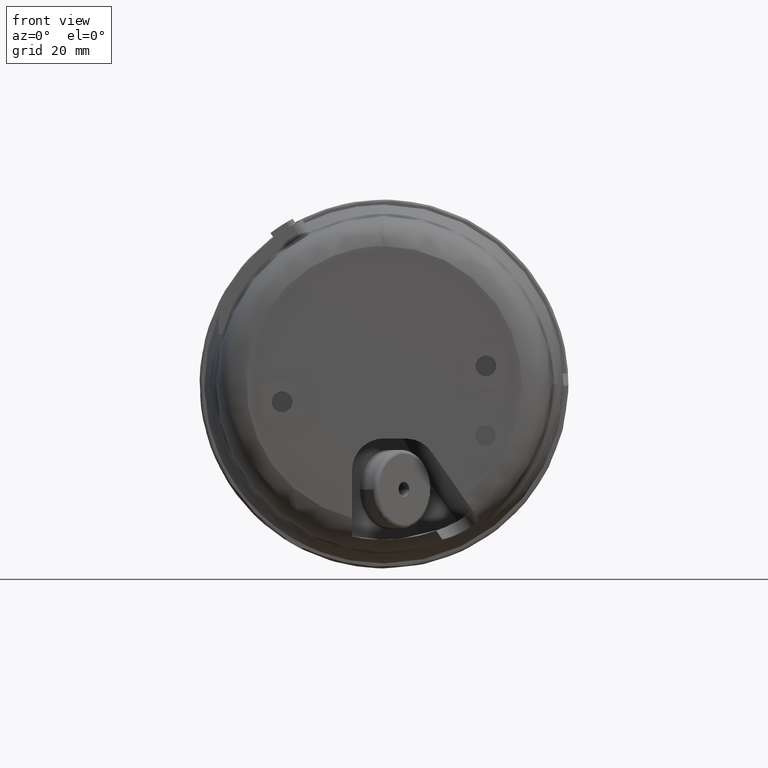
[diagram: clean part render]
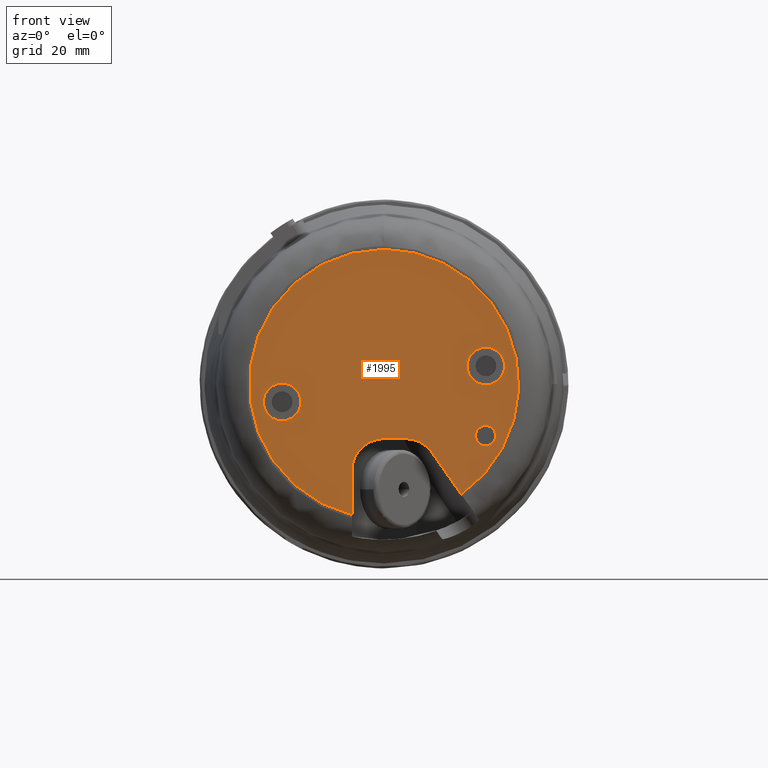
[diagram: same view with one face highlighted and labeled with its STEP entity id]
A machine part, front view. The second image highlights one B-rep face of the part: STEP entity #1995.
In plain terms, the highlighted planar face has unit normal (0, -1, 0).
Its self-contained STEP definition (entity closure, byte-faithful):
#51 = DIRECTION ( 'NONE',  ( 0.0000000000000000000, 1.000000000000000000, 0.0000000000000000000 ) ) ;
#144 = AXIS2_PLACEMENT_3D ( 'NONE', #11326, #28595, #13784 ) ;
#327 = VERTEX_POINT ( 'NONE', #8273 ) ;
#416 = AXIS2_PLACEMENT_3D ( 'NONE', #28891, #14096, #31357 ) ;
#569 = CIRCLE ( 'NONE', #29563, 0.3346456692913388200 ) ;
#1207 = VERTEX_POINT ( 'NONE', #30735 ) ;
#1943 = CIRCLE ( 'NONE', #31940, 0.1062992125984252400 ) ;
#1995 = ADVANCED_FACE ( 'NONE', ( #26231, #14589, #26947, #19579 ), #3337, .T. ) ;
#2197 = ORIENTED_EDGE ( 'NONE', *, *, #28172, .T. ) ;
#2758 = AXIS2_PLACEMENT_3D ( 'NONE', #25873, #11084, #28337 ) ;
#2981 = CARTESIAN_POINT ( 'NONE',  ( 1.062893609563289300, 0.01968503937007874000, -0.5415713441774913100 ) ) ;
#3268 = EDGE_CURVE ( 'NONE', #1207, #30220, #14529, .T. ) ;
#3337 = PLANE ( 'NONE',  #17175 ) ;
#4694 = CARTESIAN_POINT ( 'NONE',  ( 1.066228866450225300, 0.01968503937007874000, 0.3848553104661644500 ) ) ;
#4732 = CIRCLE ( 'NONE', #25088, 1.409448818897637700 ) ;
#4743 = DIRECTION ( 'NONE',  ( 0.0000000000000000000, 1.000000000000000000, 0.0000000000000000000 ) ) ;
#4854 = CARTESIAN_POINT ( 'NONE',  ( -2.185478346456692900E-017, 0.01968503937007874000, -0.5708661417322835600 ) ) ;
#5102 = EDGE_CURVE ( 'NONE', #15790, #20851, #26069, .T. ) ;
#5473 = DIRECTION ( 'NONE',  ( 0.0000000000000000000, 0.0000000000000000000, -1.000000000000000000 ) ) ;
#5821 = DIRECTION ( 'NONE',  ( 0.0000000000000000000, -1.000000000000000000, 0.0000000000000000000 ) ) ;
#6101 = ORIENTED_EDGE ( 'NONE', *, *, #8011, .T. ) ;
#6359 = CARTESIAN_POINT ( 'NONE',  ( 0.0000000000000000000, 0.01968503937007874000, -0.5708661417322835600 ) ) ;
#6668 = VERTEX_POINT ( 'NONE', #11569 ) ;
#6817 = DIRECTION ( 'NONE',  ( -0.5735764363510459400, 0.0000000000000000000, 0.8191520442889916900 ) ) ;
#7145 = CARTESIAN_POINT ( 'NONE',  ( -0.3346456692913390400, 0.01968503937007874000, -1.369145079645140300 ) ) ;
#7239 = ORIENTED_EDGE ( 'NONE', *, *, #13013, .F. ) ;
#7291 = AXIS2_PLACEMENT_3D ( 'NONE', #19571, #4743, #22074 ) ;
#7412 = CARTESIAN_POINT ( 'NONE',  ( 0.2255192667067317000, 0.01968503937007874000, -0.5708661417322835600 ) ) ;
#7422 = CARTESIAN_POINT ( 'NONE',  ( 0.8084266307624989900, 0.01968503937007874000, -1.154552881320704400 ) ) ;
#7571 = VERTEX_POINT ( 'NONE', #7422 ) ;
#7603 = ORIENTED_EDGE ( 'NONE', *, *, #13467, .T. ) ;
#8011 = EDGE_CURVE ( 'NONE', #18322, #15593, #569, .T. ) ;
#8261 = CIRCLE ( 'NONE', #144, 0.1968503937007874100 ) ;
#8273 = CARTESIAN_POINT ( 'NONE',  ( -1.066228866450225500, 0.01968503937007874000, -0.3848553104661642800 ) ) ;
#9801 = VERTEX_POINT ( 'NONE', #7145 ) ;
#10117 = EDGE_CURVE ( 'NONE', #327, #29364, #8261, .T. ) ;
#10358 = ORIENTED_EDGE ( 'NONE', *, *, #14882, .T. ) ;
#10428 = CIRCLE ( 'NONE', #25157, 0.3346456692913388800 ) ;
#10786 = ORIENTED_EDGE ( 'NONE', *, *, #20945, .T. ) ;
#11084 = DIRECTION ( 'NONE',  ( 0.0000000000000000000, 1.000000000000000000, 0.0000000000000000000 ) ) ;
#11151 = CARTESIAN_POINT ( 'NONE',  ( -2.185478346456692900E-017, 0.01968503937007874000, -0.9055118110236223300 ) ) ;
#11318 = VECTOR ( 'NONE', #30166, 39.37007874015748100 ) ;
#11326 = CARTESIAN_POINT ( 'NONE',  ( -1.066228866450225500, 0.01968503937007874000, -0.1880049167653768700 ) ) ;
#11569 = CARTESIAN_POINT ( 'NONE',  ( -0.3346456692913390400, 0.01968503937007874000, -0.9055118110236223300 ) ) ;
#11946 = ORIENTED_EDGE ( 'NONE', *, *, #10117, .T. ) ;
#12020 = DIRECTION ( 'NONE',  ( 0.0000000000000000000, 1.000000000000000000, 0.0000000000000000000 ) ) ;
#12510 = DIRECTION ( 'NONE',  ( -0.0000000000000000000, -1.000000000000000000, -0.0000000000000000000 ) ) ;
#12853 = CARTESIAN_POINT ( 'NONE',  ( 1.062893609563289300, 0.01968503937007874000, -0.5415713441774913100 ) ) ;
#13013 = EDGE_CURVE ( 'NONE', #6668, #9801, #24414, .T. ) ;
#13060 = VERTEX_POINT ( 'NONE', #20464 ) ;
#13467 = EDGE_CURVE ( 'NONE', #30220, #1207, #1943, .T. ) ;
#13608 = DIRECTION ( 'NONE',  ( 0.0000000000000000000, 0.0000000000000000000, 1.000000000000000000 ) ) ;
#13784 = DIRECTION ( 'NONE',  ( 0.0000000000000000000, 0.0000000000000000000, 1.000000000000000000 ) ) ;
#13897 = EDGE_LOOP ( 'NONE', ( #20814, #10786, #31269, #7239, #27000, #30061, #6101 ) ) ;
#14093 = EDGE_CURVE ( 'NONE', #6668, #21421, #10428, .T. ) ;
#14096 = DIRECTION ( 'NONE',  ( -0.0000000000000000000, -1.000000000000000000, -0.0000000000000000000 ) ) ;
#14529 = CIRCLE ( 'NONE', #31115, 0.1062992125984252400 ) ;
#14589 = FACE_BOUND ( 'NONE', #18314, .T. ) ;
#14637 = CIRCLE ( 'NONE', #2758, 0.1968503937007874100 ) ;
#14674 = EDGE_CURVE ( 'NONE', #7571, #15593, #17734, .T. ) ;
#14882 = EDGE_CURVE ( 'NONE', #29364, #327, #14637, .T. ) ;
#14908 = CARTESIAN_POINT ( 'NONE',  ( 1.066228866450225300, 0.01968503937007874000, 0.1880049167653770300 ) ) ;
#15334 = DIRECTION ( 'NONE',  ( 0.0000000000000000000, 0.0000000000000000000, -1.000000000000000000 ) ) ;
#15593 = VERTEX_POINT ( 'NONE', #21156 ) ;
#15790 = VERTEX_POINT ( 'NONE', #22071 ) ;
#16360 = DIRECTION ( 'NONE',  ( 1.000000000000000000, 0.0000000000000000000, 0.0000000000000000000 ) ) ;
#17175 = AXIS2_PLACEMENT_3D ( 'NONE', #18193, #5821, #23179 ) ;
#17403 = DIRECTION ( 'NONE',  ( 0.0000000000000000000, 0.0000000000000000000, 1.000000000000000000 ) ) ;
#17734 = LINE ( 'NONE', #24144, #24330 ) ;
#18055 = AXIS2_PLACEMENT_3D ( 'NONE', #14908, #51, #17403 ) ;
#18193 = CARTESIAN_POINT ( 'NONE',  ( 0.0000000000000000000, 0.01968503937007874000, 0.0000000000000000000 ) ) ;
#18314 = EDGE_LOOP ( 'NONE', ( #10358, #11946 ) ) ;
#18322 = VERTEX_POINT ( 'NONE', #7412 ) ;
#18667 = EDGE_LOOP ( 'NONE', ( #19262, #7603 ) ) ;
#19262 = ORIENTED_EDGE ( 'NONE', *, *, #3268, .T. ) ;
#19571 = CARTESIAN_POINT ( 'NONE',  ( 1.066228866450225300, 0.01968503937007874000, 0.1880049167653770300 ) ) ;
#19579 = FACE_OUTER_BOUND ( 'NONE', #13897, .T. ) ;
#20298 = DIRECTION ( 'NONE',  ( -0.0000000000000000000, 1.000000000000000000, -0.0000000000000000000 ) ) ;
#20464 = CARTESIAN_POINT ( 'NONE',  ( 0.0000000000000000000, 0.01968503937007874000, 1.409448818897637700 ) ) ;
#20691 = EDGE_CURVE ( 'NONE', #21421, #18322, #28010, .T. ) ;
#20814 = ORIENTED_EDGE ( 'NONE', *, *, #14674, .F. ) ;
#20851 = VERTEX_POINT ( 'NONE', #4694 ) ;
#20945 = EDGE_CURVE ( 'NONE', #7571, #13060, #4732, .T. ) ;
#21156 = CARTESIAN_POINT ( 'NONE',  ( 0.4996449508191898000, 0.01968503937007874000, -0.7135669405911855300 ) ) ;
#21421 = VERTEX_POINT ( 'NONE', #4854 ) ;
#21467 = VECTOR ( 'NONE', #16360, 39.37007874015748100 ) ;
#22071 = CARTESIAN_POINT ( 'NONE',  ( 1.066228866450225300, 0.01968503937007874000, -0.008845476935410386000 ) ) ;
#22074 = DIRECTION ( 'NONE',  ( 0.0000000000000000000, 0.0000000000000000000, 1.000000000000000000 ) ) ;
#22721 = ORIENTED_EDGE ( 'NONE', *, *, #5102, .T. ) ;
#23179 = DIRECTION ( 'NONE',  ( 0.0000000000000000000, -0.0000000000000000000, -1.000000000000000000 ) ) ;
#24144 = CARTESIAN_POINT ( 'NONE',  ( 0.9348844277532808400, 0.01968503937007874000, -1.335153332030088300 ) ) ;
#24330 = VECTOR ( 'NONE', #6817, 39.37007874015748900 ) ;
#24414 = LINE ( 'NONE', #27699, #11318 ) ;
#25088 = AXIS2_PLACEMENT_3D ( 'NONE', #27293, #12510, #29783 ) ;
#25157 = AXIS2_PLACEMENT_3D ( 'NONE', #11151, #28417, #13608 ) ;
#25873 = CARTESIAN_POINT ( 'NONE',  ( -1.066228866450225500, 0.01968503937007874000, -0.1880049167653768700 ) ) ;
#26069 = CIRCLE ( 'NONE', #7291, 0.1968503937007874100 ) ;
#26231 = FACE_BOUND ( 'NONE', #29306, .T. ) ;
#26790 = CARTESIAN_POINT ( 'NONE',  ( 0.2255192667067317000, 0.01968503937007874000, -0.9055118110236223300 ) ) ;
#26947 = FACE_BOUND ( 'NONE', #18667, .T. ) ;
#27000 = ORIENTED_EDGE ( 'NONE', *, *, #14093, .T. ) ;
#27293 = CARTESIAN_POINT ( 'NONE',  ( 0.0000000000000000000, 0.01968503937007874000, 0.0000000000000000000 ) ) ;
#27699 = CARTESIAN_POINT ( 'NONE',  ( -0.3346456692913390400, 0.01968503937007874000, -1.595197664651994800 ) ) ;
#27893 = CARTESIAN_POINT ( 'NONE',  ( -1.066228866450225500, 0.01968503937007874000, 0.008845476935410557700 ) ) ;
#28010 = LINE ( 'NONE', #6359, #21467 ) ;
#28172 = EDGE_CURVE ( 'NONE', #20851, #15790, #30912, .T. ) ;
#28337 = DIRECTION ( 'NONE',  ( 0.0000000000000000000, 0.0000000000000000000, 1.000000000000000000 ) ) ;
#28417 = DIRECTION ( 'NONE',  ( 0.0000000000000000000, 1.000000000000000000, 0.0000000000000000000 ) ) ;
#28595 = DIRECTION ( 'NONE',  ( 0.0000000000000000000, 1.000000000000000000, 0.0000000000000000000 ) ) ;
#28891 = CARTESIAN_POINT ( 'NONE',  ( 0.0000000000000000000, 0.01968503937007874000, 0.0000000000000000000 ) ) ;
#29277 = DIRECTION ( 'NONE',  ( 0.0000000000000000000, 0.0000000000000000000, 1.000000000000000000 ) ) ;
#29306 = EDGE_LOOP ( 'NONE', ( #2197, #22721 ) ) ;
#29364 = VERTEX_POINT ( 'NONE', #27893 ) ;
#29563 = AXIS2_PLACEMENT_3D ( 'NONE', #26790, #12020, #29277 ) ;
#29575 = EDGE_CURVE ( 'NONE', #13060, #9801, #31942, .T. ) ;
#29783 = DIRECTION ( 'NONE',  ( 0.0000000000000000000, 0.0000000000000000000, 1.000000000000000000 ) ) ;
#30061 = ORIENTED_EDGE ( 'NONE', *, *, #20691, .T. ) ;
#30113 = DIRECTION ( 'NONE',  ( -0.0000000000000000000, 1.000000000000000000, -0.0000000000000000000 ) ) ;
#30166 = DIRECTION ( 'NONE',  ( 0.0000000000000000000, 0.0000000000000000000, -1.000000000000000000 ) ) ;
#30220 = VERTEX_POINT ( 'NONE', #30298 ) ;
#30298 = CARTESIAN_POINT ( 'NONE',  ( 1.062893609563289300, 0.01968503937007874000, -0.4352721315790660800 ) ) ;
#30735 = CARTESIAN_POINT ( 'NONE',  ( 1.062893609563289300, 0.01968503937007874000, -0.6478705567759165400 ) ) ;
#30912 = CIRCLE ( 'NONE', #18055, 0.1968503937007874100 ) ;
#31115 = AXIS2_PLACEMENT_3D ( 'NONE', #12853, #30113, #15334 ) ;
#31269 = ORIENTED_EDGE ( 'NONE', *, *, #29575, .T. ) ;
#31357 = DIRECTION ( 'NONE',  ( 0.0000000000000000000, 0.0000000000000000000, 1.000000000000000000 ) ) ;
#31940 = AXIS2_PLACEMENT_3D ( 'NONE', #2981, #20298, #5473 ) ;
#31942 = CIRCLE ( 'NONE', #416, 1.409448818897637700 ) ;